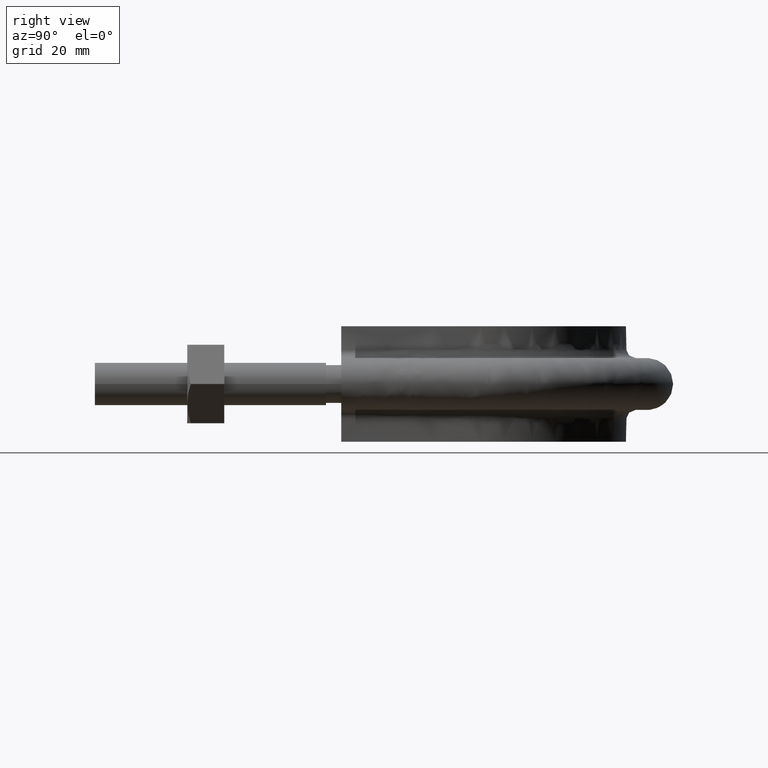
[diagram: clean part render]
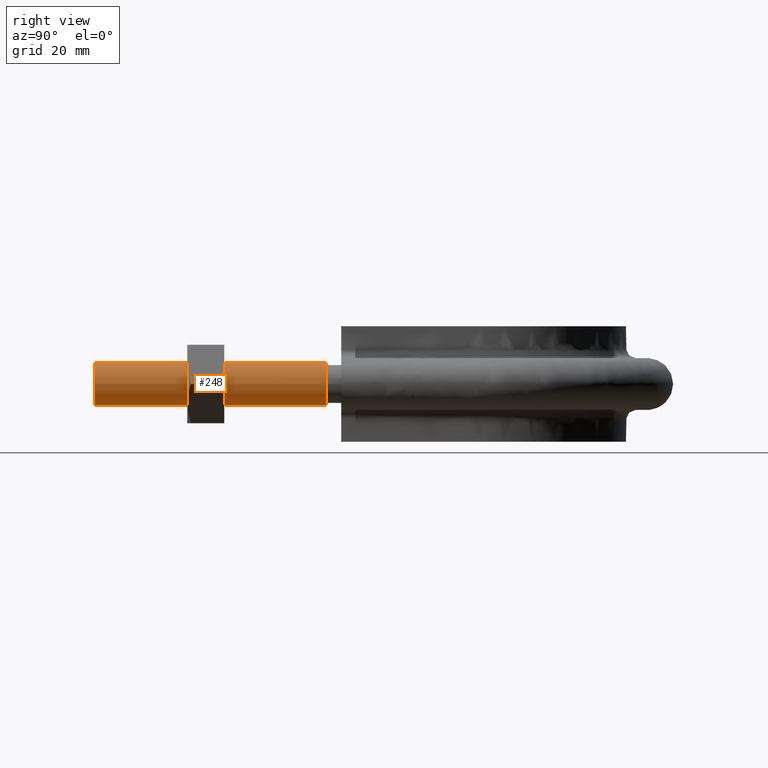
[diagram: same view with one face highlighted and labeled with its STEP entity id]
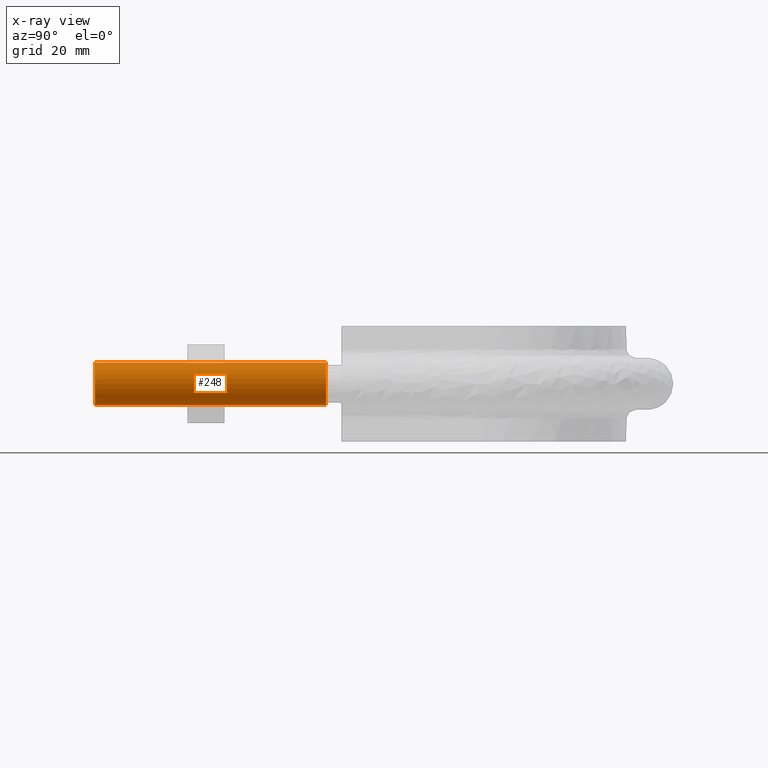
[diagram: x-ray of the same camera — body ghosted, the highlighted face saturated]
A machine part, right view. The second image highlights one B-rep face of the part: STEP entity #248.
The next image is the same camera in x-ray: the body ghosted, the highlighted face saturated — about 0% of this face is hidden behind the body in this view.
In plain terms, the highlighted cylindrical surface (bore or boss wall) has radius 4.6 mm, axis along (0, 1, -0).
Its self-contained STEP definition (entity closure, byte-faithful):
#248 = ADVANCED_FACE( '', ( #363, #364 ), #365, .T. );
#363 = FACE_OUTER_BOUND( '', #1360, .T. );
#364 = FACE_OUTER_BOUND( '', #1361, .T. );
#365 = CYLINDRICAL_SURFACE( '', #1362, 4.60000000000000 );
#1360 = EDGE_LOOP( '', ( #1652 ) );
#1361 = EDGE_LOOP( '', ( #1653 ) );
#1362 = AXIS2_PLACEMENT_3D( '', #1654, #1655, #1656 );
#1652 = ORIENTED_EDGE( '', *, *, #2048, .T. );
#1653 = ORIENTED_EDGE( '', *, *, #2050, .F. );
#1654 = CARTESIAN_POINT( '', ( 37.0000000000000, 50.0000000000000, -3.09825407517061E-015 ) );
#1655 = DIRECTION( '', ( 2.44921270764475E-016, 1.00000000000000, -6.12303176911189E-017 ) );
#1656 = DIRECTION( '', ( 1.00000000000000, -2.44921270764475E-016, 0.000000000000000 ) );
#2048 = EDGE_CURVE( '', #2227, #2227, #2228, .T. );
#2050 = EDGE_CURVE( '', #2231, #2231, #2232, .T. );
#2227 = VERTEX_POINT( '', #2724 );
#2228 = CIRCLE( '', #2725, 4.60000000000000 );
#2231 = VERTEX_POINT( '', #2728 );
#2232 = CIRCLE( '', #2729, 4.60000000000000 );
#2724 = CARTESIAN_POINT( '', ( 41.6000000000000, 50.0000000000000, -3.09825407517061E-015 ) );
#2725 = AXIS2_PLACEMENT_3D( '', #3115, #3116, #3117 );
#2728 = CARTESIAN_POINT( '', ( 41.6000000000000, -1.01887248638022E-014, -3.67381906146710E-017 ) );
#2729 = AXIS2_PLACEMENT_3D( '', #3121, #3122, #3123 );
#3115 = CARTESIAN_POINT( '', ( 37.0000000000000, 50.0000000000000, -3.09825407517061E-015 ) );
#3116 = DIRECTION( '', ( -2.44921270764476E-016, -1.00000000000000, 6.12303176911189E-017 ) );
#3117 = DIRECTION( '', ( 1.00000000000000, -2.44921270764476E-016, 1.02543741170147E-047 ) );
#3121 = CARTESIAN_POINT( '', ( 37.0000000000000, -9.06208701828559E-015, -3.67381906146710E-017 ) );
#3122 = DIRECTION( '', ( -2.44921270764476E-016, -1.00000000000000, 6.12303176911189E-017 ) );
#3123 = DIRECTION( '', ( 1.00000000000000, -2.44921270764476E-016, 1.02543741170147E-047 ) );